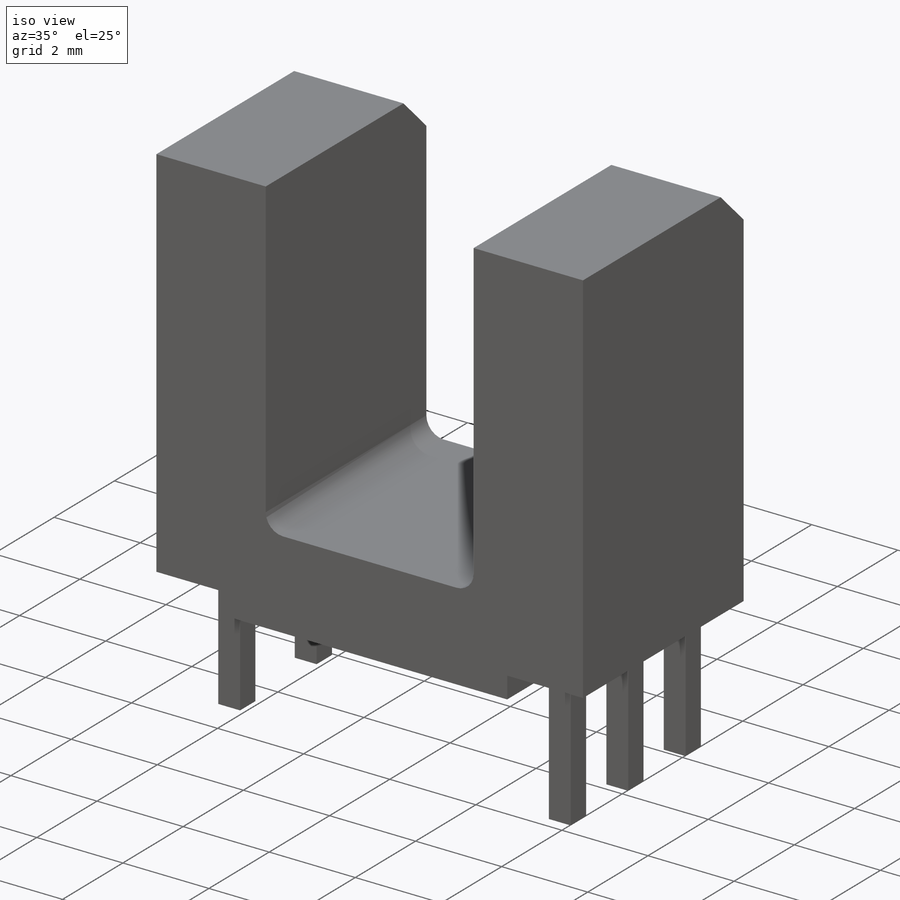
[diagram: iso view]
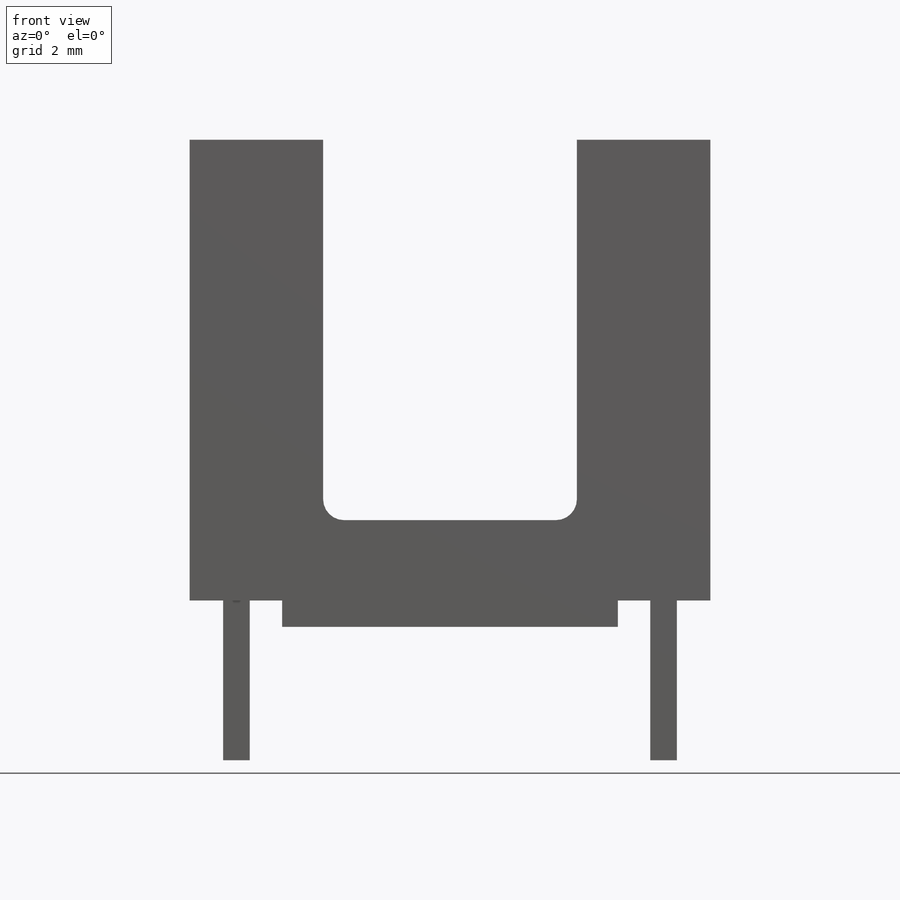
[diagram: front view]
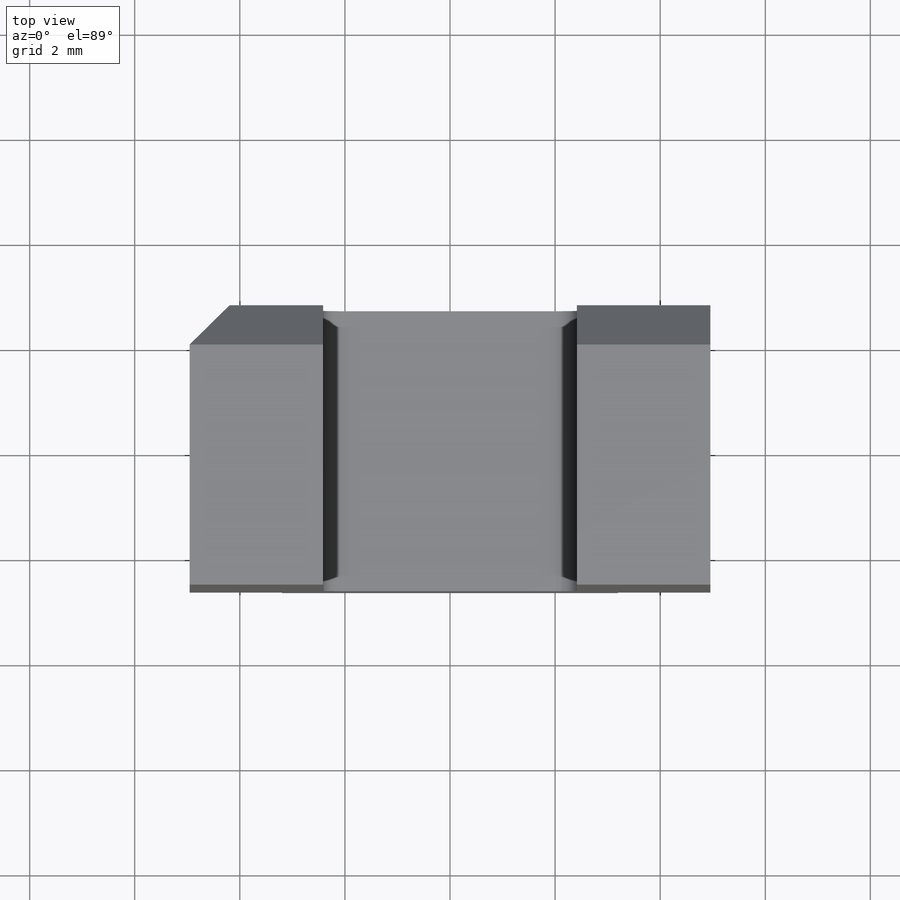
[diagram: top view]
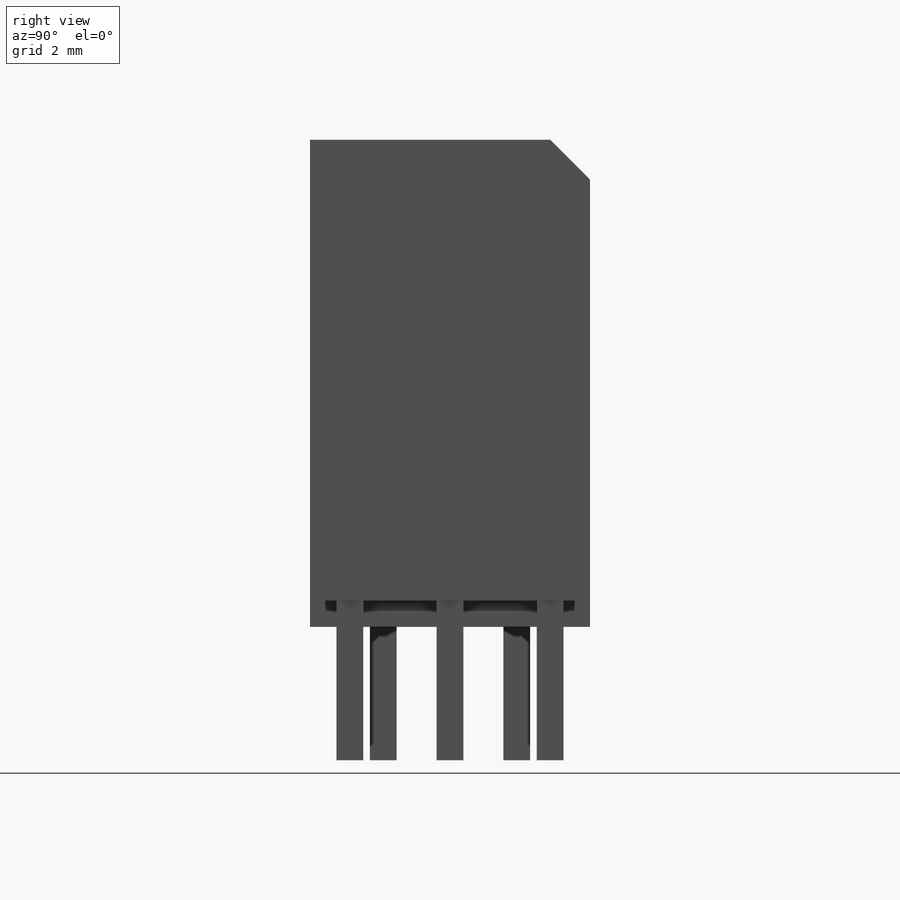
[diagram: right view]
SOLIDWORKS PART (.sldprt)
format: sldprt  version: not decoded by parser v0  size: 202,240 bytes
history: native  units: mm
features: sketch x3, extrude x2, material x1, chamfer x1, cut_extrude x1, fillet x1 (+16 scaffold rows collapsed)
feature tree (25):
  scaffold x16  (default folders/planes/origin — collapsed)
  material  "Material <not specified>"
  sketch  "Sketch1"  dims[D1=4.83mm D2=2.54mm D3=9.27mm D4=7.24mm]
  extrude  "Boss-Extrude1"  Depth=5.33mm
  chamfer  "Chamfer1"  Distance=0.76mm Angle=45deg
  sketch  "Sketch2"  dims[D1=1.76mm]
  cut_extrude  "Cut-Extrude1"  Depth=0.5mm
  fillet  "Fillet1"  Radius=0.4mm
  sketch  "Sketch3"  dims[D1=0.508mm D2=2.54mm D3=8.128mm D4=1.905mm D5=3.81mm]
  extrude  "Boss-Extrude2"  Depth=2.54mm
decode coverage: 8 of 8 modeling features carry decoded parameters
note: suppression state not decoded; provenance and decode notes live in map.json
